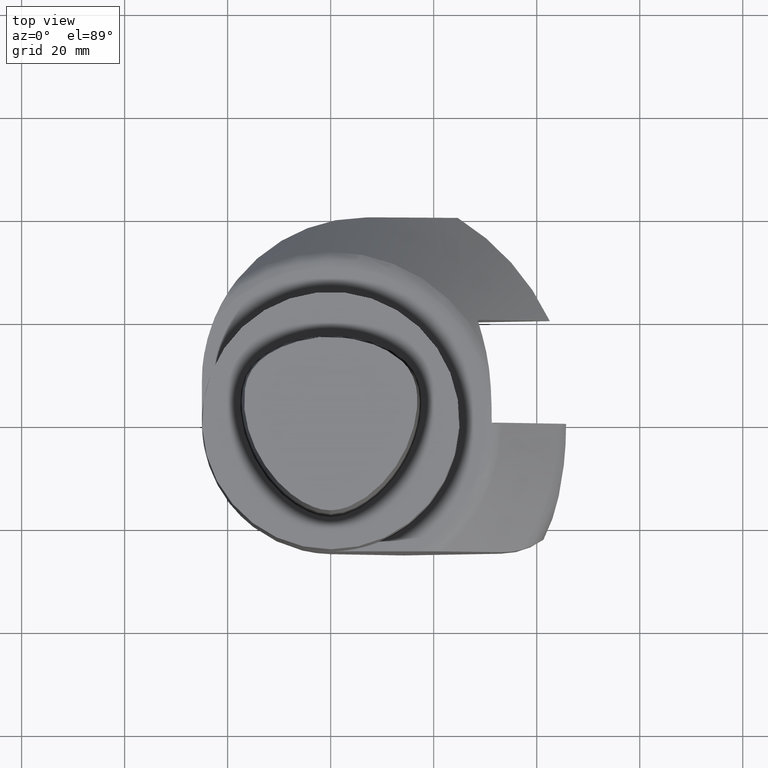
[diagram: clean part render]
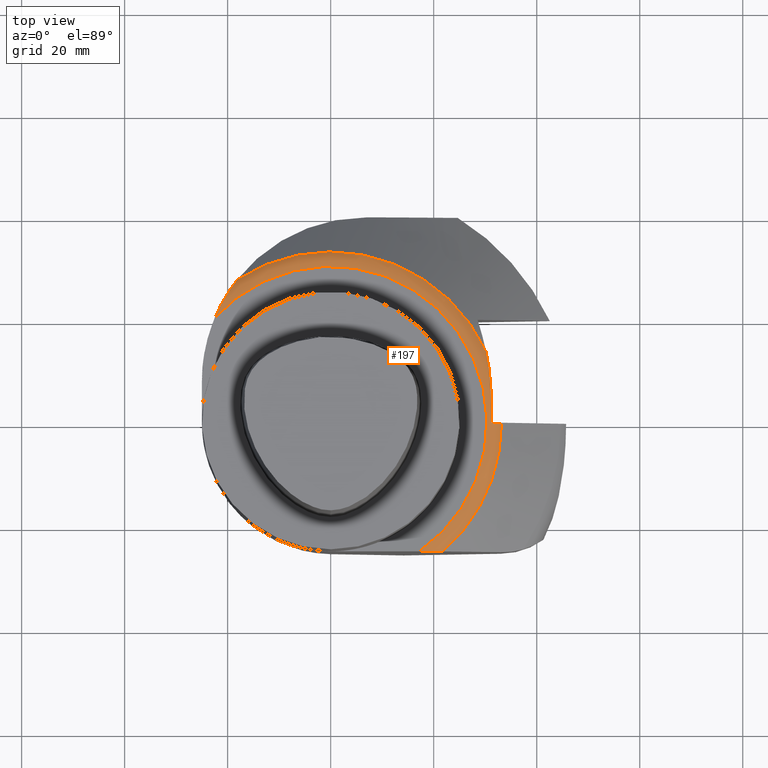
[diagram: same view with one face highlighted and labeled with its STEP entity id]
A machine part, top view. The second image highlights one B-rep face of the part: STEP entity #197.
In plain terms, the highlighted toroidal blend (fillet) surface has major radius 30.343 mm and minor (blend) radius 4 mm.
Its self-contained STEP definition (entity closure, byte-faithful):
#125=EDGE_CURVE('240[2]',#370,#371,#372,.T.);
#131=EDGE_CURVE('240[2]',#382,#383,#384,.T.);
#167=EDGE_CURVE('240[2]',#440,#441,#442,.T.);
#194=EDGE_CURVE('240[2]',#371,#481,#482,.T.);
#197=ADVANCED_FACE('240[2]',(#485),#486,.T.);
#201=EDGE_CURVE('240[2]',#481,#383,#492,.T.);
#240=EDGE_CURVE('240[2]',#382,#539,#540,.T.);
#251=EDGE_CURVE('240[2]',#410,#441,#553,.T.);
#299=EDGE_CURVE('240[2]',#410,#370,#613,.T.);
#311=EDGE_CURVE('240[2]',#539,#440,#625,.T.);
#370=VERTEX_POINT('',#683);
#371=VERTEX_POINT('',#684);
#372=B_SPLINE_CURVE_WITH_KNOTS('',3,(#685,#686,#687,#688,#689,#690,#691,#692,#693,#694,#695,#696,#697,#698,#699,#700,#701,#702,#703,#704,#705,#706,#707,#708,#709,#710,#711,#712,#713,#714,#715,#716,#717,#718,#719,#720,#721,#722),.UNSPECIFIED.,.F.,.F.,(4,2,2,2,2,2,2,2,2,2,2,2,2,2,2,2,2,2,4),(-0.299360776475545,-0.29932991775309,-0.299273456833473,-0.299164199913228,-0.298543307621495,-0.297591002690449,-0.295165372458451,-0.284086525335569,-0.223123589970856,-0.197934282085894,-0.185227913182735,-0.178821396907977,-0.175463110907688,-0.173388386793443,-0.171785967755264,-0.171212580066397,-0.17103839937693,-0.170930426507673,-0.170907209343998),.UNSPECIFIED.);
#382=VERTEX_POINT('',#737);
#383=VERTEX_POINT('',#738);
#384=CIRCLE('',#739,33.1714171834653);
#410=VERTEX_POINT('',#1156);
#440=VERTEX_POINT('',#1200);
#441=VERTEX_POINT('',#1201);
#442=B_SPLINE_CURVE_WITH_KNOTS('',3,(#1202,#1203,#1204,#1205,#1206,#1207,#1208,#1209,#1210,#1211),.UNSPECIFIED.,.F.,.F.,(4,2,2,2,4),(2.7335188012095,2.87831632247054,3.02311384373158,3.12631424973931,3.18596247144899),.UNSPECIFIED.);
#481=VERTEX_POINT('',#1292);
#482=CIRCLE('',#1293,4.0);
#485=FACE_OUTER_BOUND('',#1297,.T.);
#486=TOROIDAL_SURFACE('',#1298,30.3429950186847,4.0);
#492=B_SPLINE_CURVE_WITH_KNOTS('',3,(#1307,#1308,#1309,#1310,#1311,#1312),.UNSPECIFIED.,.F.,.F.,(4,2,4),(0.0,0.835293040488517,1.30474269263037),.UNSPECIFIED.);
#539=VERTEX_POINT('',#1443);
#540=B_SPLINE_CURVE_WITH_KNOTS('',3,(#1444,#1445,#1446,#1447,#1448,#1449),.UNSPECIFIED.,.F.,.F.,(4,2,4),(-1.34845830523271,-0.945384371057552,-0.688038864196021),.UNSPECIFIED.);
#553=CIRCLE('',#1481,33.1714171834653);
#613=CIRCLE('',#1580,4.0);
#625=CIRCLE('',#1613,30.3429950186847);
#683=CARTESIAN_POINT('',(33.1393102817554,5.00738618306128E-014,-23.1398215069732));
#684=CARTESIAN_POINT('',(31.3699079426675,-1.73075847376449E-014,-22.134065451799));
#685=CARTESIAN_POINT('',(33.1393102817554,5.00738618306128E-014,-23.1398215069732));
#686=CARTESIAN_POINT('',(33.1393102817554,-0.000102862408133383,-23.1398215069732));
#687=CARTESIAN_POINT('',(33.139309817028,-0.000205720751116503,-23.1398210530904));
#688=CARTESIAN_POINT('',(33.1393071873038,-0.00049676279022941,-23.1398184847358));
#689=CARTESIAN_POINT('',(33.139303921956,-0.000686015132408777,-23.1398152955912));
#690=CARTESIAN_POINT('',(33.1392895864213,-0.00124466324975152,-23.1398012946994));
#691=CARTESIAN_POINT('',(33.1392741332582,-0.00161468034109817,-23.1397862023207));
#692=CARTESIAN_POINT('',(33.1391296264127,-0.00409895182041413,-23.1396450733656));
#693=CARTESIAN_POINT('',(33.1388127518525,-0.00617379694684898,-23.1393355902925));
#694=CARTESIAN_POINT('',(33.1375735722919,-0.0113252156720345,-23.1381261608361));
#695=CARTESIAN_POINT('',(33.1364370847596,-0.0142645534777552,-23.1370175369382));
#696=CARTESIAN_POINT('',(33.13159765927,-0.0239478795164516,-23.132304988347));
#697=CARTESIAN_POINT('',(33.1263267327125,-0.0301787745991249,-23.1271873267795));
#698=CARTESIAN_POINT('',(33.0947166121552,-0.0599883609071609,-23.0967130490377));
#699=CARTESIAN_POINT('',(33.0466791527003,-0.0784728485031419,-23.0519367032729));
#700=CARTESIAN_POINT('',(32.8604685067702,-0.142024276899688,-22.8845790504011));
#701=CARTESIAN_POINT('',(32.5325108160417,-0.191989069477952,-22.6188872398904));
#702=CARTESIAN_POINT('',(31.9261172161517,-0.191336459662592,-22.3215628775682));
#703=CARTESIAN_POINT('',(31.7654601095872,-0.180547700441158,-22.2592903991692));
#704=CARTESIAN_POINT('',(31.5760246506011,-0.144590844596824,-22.1943011557913));
#705=CARTESIAN_POINT('',(31.5223204016967,-0.129368739533932,-22.1776220674573));
#706=CARTESIAN_POINT('',(31.4580022051563,-0.101612183897887,-22.1585285047824));
#707=CARTESIAN_POINT('',(31.4356012805308,-0.089935971836788,-22.1521001574651));
#708=CARTESIAN_POINT('',(31.4064564626769,-0.0678384108155744,-22.1439651699781));
#709=CARTESIAN_POINT('',(31.3967599798391,-0.0590245011535375,-22.1413040406309));
#710=CARTESIAN_POINT('',(31.383856595794,-0.0427310841351642,-22.1378019021083));
#711=CARTESIAN_POINT('',(31.3794988538338,-0.0359169571320918,-22.1366296132564));
#712=CARTESIAN_POINT('',(31.3736619167405,-0.0228143177642428,-22.1350657493723));
#713=CARTESIAN_POINT('',(31.3717779471941,-0.0168120992094374,-22.1345635558255));
#714=CARTESIAN_POINT('',(31.3703971287312,-0.00829339408761856,-22.1341956796191));
#715=CARTESIAN_POINT('',(31.3701455362441,-0.00602066997202948,-22.1341287006042));
#716=CARTESIAN_POINT('',(31.3699742981013,-0.00302260984096313,-22.1340831148802));
#717=CARTESIAN_POINT('',(31.3699453735784,-0.00231940840180159,-22.1340754154248));
#718=CARTESIAN_POINT('',(31.3699170159195,-0.00117267884231698,-22.1340678669401));
#719=CARTESIAN_POINT('',(31.3699105304481,-0.000731176447289279,-22.1340661406228));
#720=CARTESIAN_POINT('',(31.3699081538497,-0.000191438214383619,-22.1340655080121));
#721=CARTESIAN_POINT('',(31.3699079426675,-9.57858284070843E-005,-22.134065451799));
#722=CARTESIAN_POINT('',(31.3699079426675,-1.73075847376449E-014,-22.134065451799));
#737=CARTESIAN_POINT('',(-18.1828670417911,27.7439410340357,-23.1715679043788));
#738=CARTESIAN_POINT('',(30.2010154359409,13.7201160562714,-23.1715679043788));
#739=AXIS2_PLACEMENT_3D('',#1793,#1794,#1795);
#1156=CARTESIAN_POINT('',(33.1714171834653,-1.75581684987468E-014,-23.1715679043789));
#1200=CARTESIAN_POINT('',(17.1958526017904,-25.0000000000284,-21.999999989082));
#1201=CARTESIAN_POINT('',(21.8023603758513,-25.0000000000201,-23.1715679043789));
#1202=CARTESIAN_POINT('',(17.1958526017904,-25.0000000000284,-21.999999989082));
#1203=CARTESIAN_POINT('',(17.6785110059939,-25.0000000000276,-21.999999989082));
#1204=CARTESIAN_POINT('',(18.2080750514393,-25.0000000000266,-22.0295150206887));
#1205=CARTESIAN_POINT('',(19.2541060515855,-25.0000000000247,-22.173616910598));
#1206=CARTESIAN_POINT('',(19.7704597433585,-25.0000000000238,-22.2890247492805));
#1207=CARTESIAN_POINT('',(20.5576275978012,-25.0000000000224,-22.5414789504843));
#1208=CARTESIAN_POINT('',(20.9093765320111,-25.0000000000217,-22.679631923913));
#1209=CARTESIAN_POINT('',(21.4380350302956,-25.0000000000208,-22.9473963715229));
#1210=CARTESIAN_POINT('',(21.626243711416,-25.0000000000204,-23.0558132624201));
#1211=CARTESIAN_POINT('',(21.8023603758513,-25.0000000000201,-23.1715679043789));
#1292=CARTESIAN_POINT('',(31.2648960856771,-1.7194399199518E-014,-22.1076872546427));
#1293=AXIS2_PLACEMENT_3D('',#1889,#1890,#1891);
#1297=EDGE_LOOP('',(#1893,#1894,#1895,#1896,#1897,#1898,#1899,#1900,#1901));
#1298=AXIS2_PLACEMENT_3D('',#1902,#1903,#1904);
#1307=CARTESIAN_POINT('',(31.2648960856771,-1.7194399199518E-014,-22.1076872546427));
#1308=CARTESIAN_POINT('',(31.2648960856771,2.78431013496171,-22.1076872546427));
#1309=CARTESIAN_POINT('',(31.2133146922182,5.84634463048435,-22.1592686481016));
#1310=CARTESIAN_POINT('',(30.7741391321712,10.5061568270537,-22.5984442081486));
#1311=CARTESIAN_POINT('',(30.5393345471028,12.1574365316971,-22.833248793217));
#1312=CARTESIAN_POINT('',(30.2010154359409,13.7201160562714,-23.1715679043788));
#1443=CARTESIAN_POINT('',(-22.5324903971799,20.3220132665276,-21.9999999890819));
#1444=CARTESIAN_POINT('',(-18.1828670417908,27.743941034036,-23.1715679043789));
#1445=CARTESIAN_POINT('',(-19.0209631684343,26.6749719113508,-22.7369052784288));
#1446=CARTESIAN_POINT('',(-19.9888658237749,25.2987225864859,-22.3920756207143));
#1447=CARTESIAN_POINT('',(-21.5169791216214,22.5694054498376,-22.0619765782996));
#1448=CARTESIAN_POINT('',(-22.0581187691423,21.4589521130203,-21.9999999890819));
#1449=CARTESIAN_POINT('',(-22.5324903971799,20.3220132665276,-21.9999999890819));
#1481=AXIS2_PLACEMENT_3D('',#1977,#1978,#1979);
#1580=AXIS2_PLACEMENT_3D('',#2057,#2058,#2059);
#1613=AXIS2_PLACEMENT_3D('',#2068,#2069,#2070);
#1793=CARTESIAN_POINT('',(-1.41884932326615E-015,4.37391914460091E-014,-23.1715679043789));
#1794=DIRECTION('',(-6.12323399573674E-017,1.88762329879902E-015,-1.0));
#1795=DIRECTION('',(-1.22464679914735E-016,-1.0,-1.88762329879902E-015));
#1889=CARTESIAN_POINT('',(30.3429950186847,4.90552117639225E-014,-25.999999989082));
#1890=DIRECTION('',(-1.22464679914735E-016,-1.0,1.22464679914735E-016));
#1891=DIRECTION('',(1.0,-1.22464679914735E-016,-6.12323399573677E-017));
#1893=ORIENTED_EDGE('',*,*,#201,.T.);
#1894=ORIENTED_EDGE('',*,*,#131,.F.);
#1895=ORIENTED_EDGE('',*,*,#240,.T.);
#1896=ORIENTED_EDGE('',*,*,#311,.T.);
#1897=ORIENTED_EDGE('',*,*,#167,.T.);
#1898=ORIENTED_EDGE('',*,*,#251,.F.);
#1899=ORIENTED_EDGE('',*,*,#299,.T.);
#1900=ORIENTED_EDGE('',*,*,#125,.T.);
#1901=ORIENTED_EDGE('',*,*,#194,.T.);
#1902=CARTESIAN_POINT('',(-1.59204083822302E-015,5.27711569365401E-014,-25.9999999890819));
#1903=DIRECTION('',(-6.12323399573675E-017,1.88762329879902E-015,-1.0));
#1904=DIRECTION('',(1.0,-1.22464679914735E-016,-6.12323399573677E-017));
#1977=CARTESIAN_POINT('',(-1.41884932326615E-015,4.37391914460091E-014,-23.1715679043789));
#1978=DIRECTION('',(-6.12323399573674E-017,1.88762329879902E-015,-1.0));
#1979=DIRECTION('',(-1.22464679914735E-016,-1.0,-1.88762329879902E-015));
#2057=CARTESIAN_POINT('',(30.3429950186847,4.90552117639225E-014,-25.999999989082));
#2058=DIRECTION('',(-1.22464679914735E-016,-1.0,1.22464679914735E-016));
#2059=DIRECTION('',(1.0,-1.22464679914735E-016,-6.12323399573677E-017));
#2068=CARTESIAN_POINT('',(-1.34711147839355E-015,4.15277125529693E-014,-21.9999999890819));
#2069=DIRECTION('',(-6.12323399573674E-017,1.88762329879902E-015,-1.0));
#2070=DIRECTION('',(-1.22464679914735E-016,-1.0,-1.88762329879902E-015));